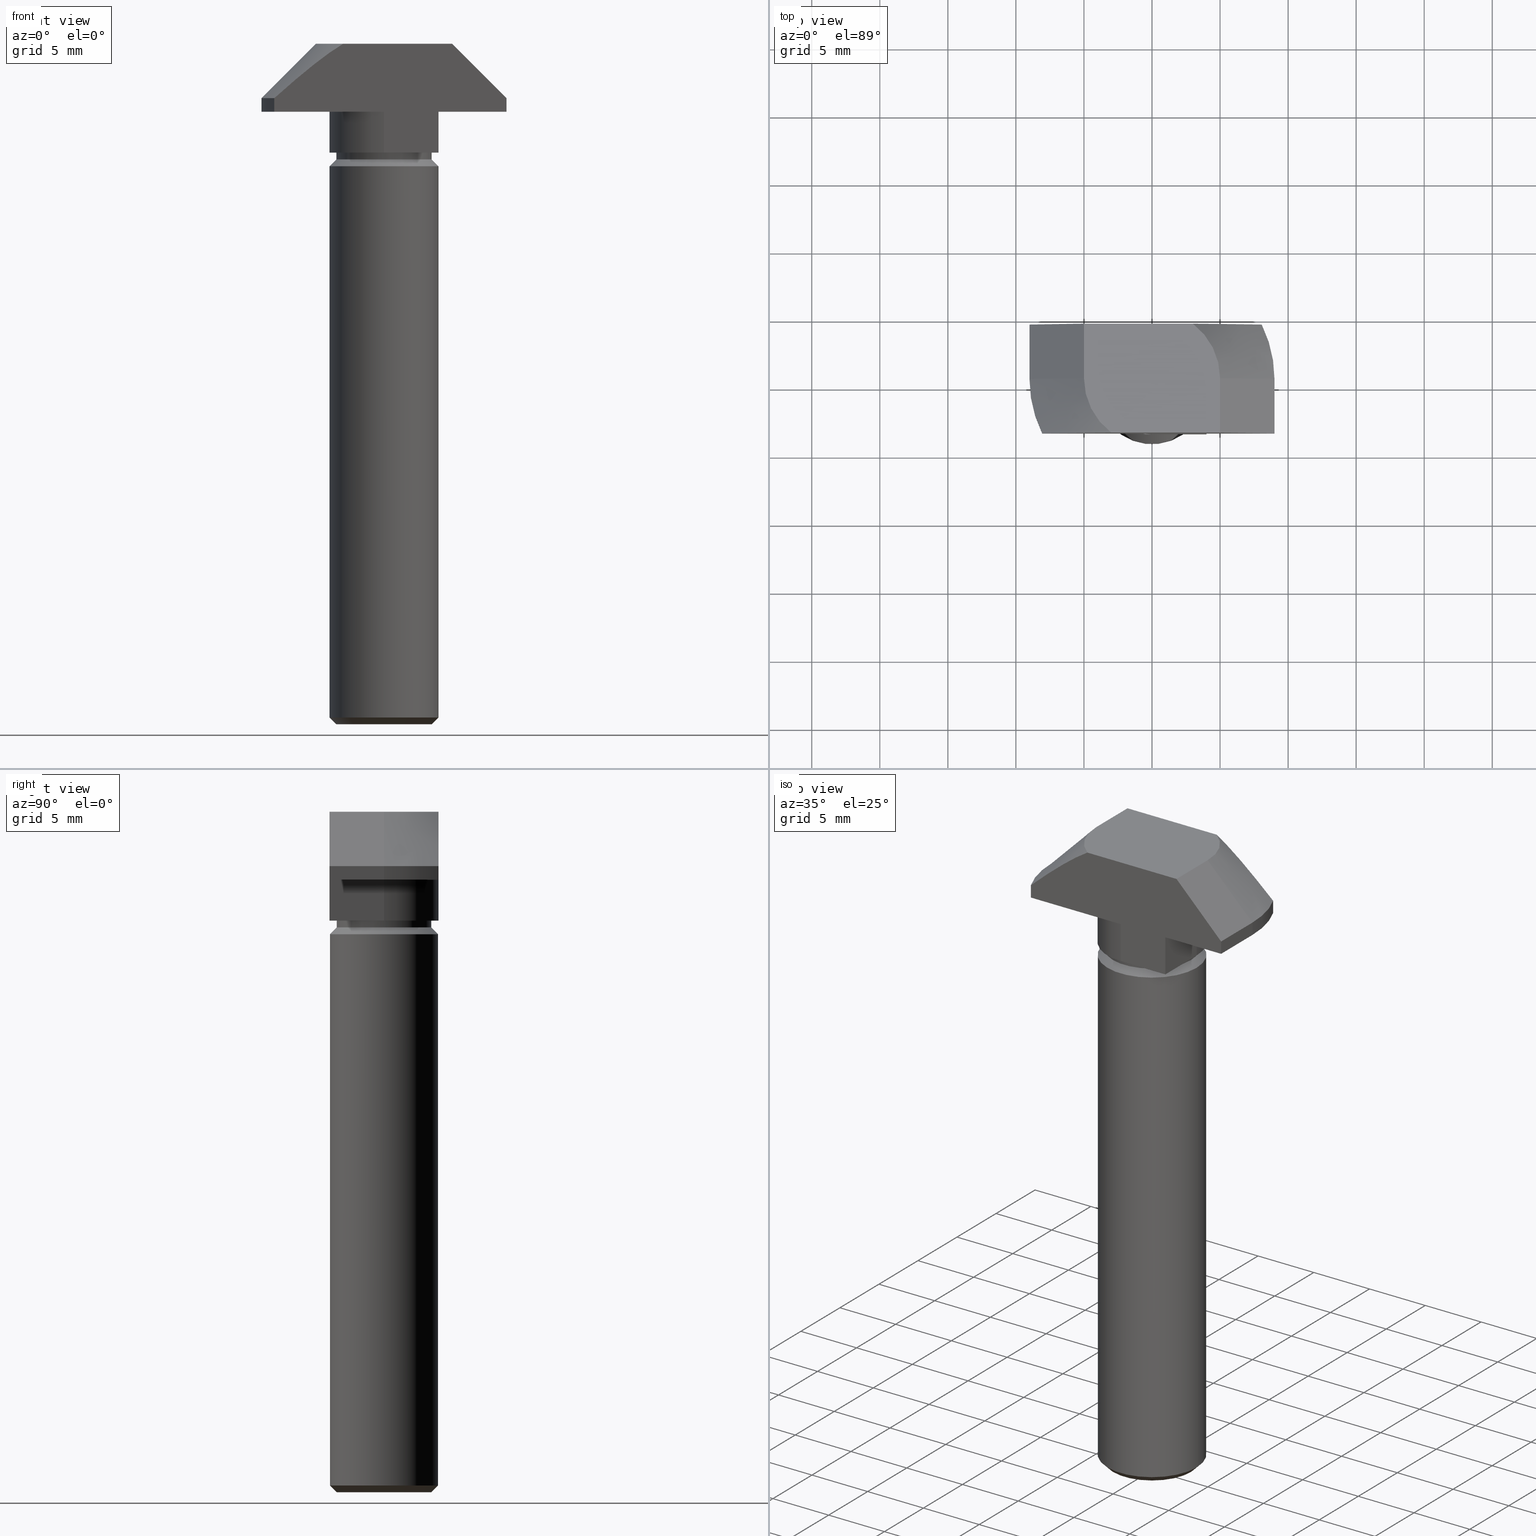
[diagram: canonical four-view strip — front | top / right | iso, engineering-drawing reading convention]
A machine part, canonical four-view strip (front | top / right | iso — engineering-drawing reading convention). The complete STEP part file that produces these views, byte-faithful:
ISO-10303-21;
HEADER;
/* Generated by software containing ST-Developer
 * from STEP Tools, Inc. (www.steptools.com) 
 */

FILE_DESCRIPTION(
/* description */ (''),
/* implementation_level */ '2;1');

FILE_NAME(
/* name */ 
'Q:\\Catalogo\\2_Accessori Dierre\\Per Download Web e catalogo cartace
o\\CATALOGO ELEMENTI ASSEMBLAGGIO\\PAGINA 14\\DVIXX0000023.stp',
/* time_stamp */ '2018-05-10T17:19:23+02:00',
/* author */ ('fzagni'),
/* organization */ (''),
/* preprocessor_version */ 'ST-DEVELOPER v16.1',
/* originating_system */ 'Autodesk Inventor 2016',
/* authorisation */ '');

FILE_SCHEMA (('AUTOMOTIVE_DESIGN { 1 0 10303 214 3 1 1 }'));
ENDSEC;

DATA;
#10=MECHANICAL_DESIGN_GEOMETRIC_PRESENTATION_REPRESENTATION('',(#13),#659);
#11=SHAPE_REPRESENTATION_RELATIONSHIP('SRR','None',#668,#12);
#12=ADVANCED_BREP_SHAPE_REPRESENTATION('',(#14),#658);
#13=STYLED_ITEM('',(#677),#14);
#14=MANIFOLD_SOLID_BREP('Solido1',#390);
#15=(
BOUNDED_CURVE()
B_SPLINE_CURVE(2,(#610,#611,#612),.UNSPECIFIED.,.F.,.F.)
B_SPLINE_CURVE_WITH_KNOTS((3,3),(0.,0.645810133031387),.UNSPECIFIED.)
CURVE()
GEOMETRIC_REPRESENTATION_ITEM()
RATIONAL_B_SPLINE_CURVE((1.,1.07257323111151,1.))
REPRESENTATION_ITEM('')
);
#16=(
BOUNDED_CURVE()
B_SPLINE_CURVE(2,(#629,#630,#631),.UNSPECIFIED.,.F.,.F.)
B_SPLINE_CURVE_WITH_KNOTS((3,3),(0.,0.645810133031388),.UNSPECIFIED.)
CURVE()
GEOMETRIC_REPRESENTATION_ITEM()
RATIONAL_B_SPLINE_CURVE((1.,1.07257323111155,1.))
REPRESENTATION_ITEM('')
);
#17=LINE('',#561,#51);
#18=LINE('',#563,#52);
#19=LINE('',#565,#53);
#20=LINE('',#566,#54);
#21=LINE('',#572,#55);
#22=LINE('',#576,#56);
#23=LINE('',#578,#57);
#24=LINE('',#580,#58);
#25=LINE('',#581,#59);
#26=LINE('',#587,#60);
#27=LINE('',#589,#61);
#28=LINE('',#590,#62);
#29=LINE('',#593,#63);
#30=LINE('',#597,#64);
#31=LINE('',#598,#65);
#32=LINE('',#601,#66);
#33=LINE('',#605,#67);
#34=LINE('',#606,#68);
#35=LINE('',#616,#69);
#36=LINE('',#619,#70);
#37=LINE('',#620,#71);
#38=LINE('',#623,#72);
#39=LINE('',#626,#73);
#40=LINE('',#634,#74);
#41=LINE('',#637,#75);
#42=LINE('',#638,#76);
#43=LINE('',#641,#77);
#44=LINE('',#642,#78);
#45=LINE('',#645,#79);
#46=LINE('',#646,#80);
#47=LINE('',#649,#81);
#48=LINE('',#650,#82);
#49=LINE('',#652,#83);
#50=LINE('',#654,#84);
#51=VECTOR('',#454,3.99999999999999);
#52=VECTOR('',#455,3.);
#53=VECTOR('',#456,3.99999999999999);
#54=VECTOR('',#457,3.);
#55=VECTOR('',#464,3.);
#56=VECTOR('',#467,3.99999999999999);
#57=VECTOR('',#468,3.);
#58=VECTOR('',#469,3.99999999999999);
#59=VECTOR('',#470,3.);
#60=VECTOR('',#477,3.);
#61=VECTOR('',#480,3.99999999999999);
#62=VECTOR('',#481,3.99999999999999);
#63=VECTOR('',#484,8.06225774829855);
#64=VECTOR('',#487,4.);
#65=VECTOR('',#488,5.00000000000001);
#66=VECTOR('',#491,8.06225774829855);
#67=VECTOR('',#494,4.);
#68=VECTOR('',#495,5.00000000000001);
#69=VECTOR('',#500,5.65685424949238);
#70=VECTOR('',#505,1.);
#71=VECTOR('',#506,1.);
#72=VECTOR('',#509,1.);
#73=VECTOR('',#512,1.);
#74=VECTOR('',#517,5.65685424949238);
#75=VECTOR('',#520,4.);
#76=VECTOR('',#521,1.);
#77=VECTOR('',#524,4.);
#78=VECTOR('',#525,5.65685424949238);
#79=VECTOR('',#528,4.);
#80=VECTOR('',#529,1.);
#81=VECTOR('',#532,4.);
#82=VECTOR('',#533,5.65685424949238);
#83=VECTOR('',#536,8.);
#84=VECTOR('',#539,8.00000000000001);
#85=PLANE('',#399);
#86=PLANE('',#402);
#87=PLANE('',#406);
#88=PLANE('',#410);
#89=PLANE('',#411);
#90=PLANE('',#413);
#91=PLANE('',#423);
#92=PLANE('',#424);
#93=PLANE('',#425);
#94=PLANE('',#426);
#95=PLANE('',#427);
#96=PLANE('',#428);
#97=PLANE('',#429);
#98=CYLINDRICAL_SURFACE('',#395,4.);
#99=CYLINDRICAL_SURFACE('',#400,3.5);
#100=CYLINDRICAL_SURFACE('',#403,4.00000000000001);
#101=CYLINDRICAL_SURFACE('',#407,3.99999999999999);
#102=CYLINDRICAL_SURFACE('',#418,9.);
#103=CYLINDRICAL_SURFACE('',#419,9.);
#104=FACE_BOUND('',#133,.T.);
#105=FACE_BOUND('',#135,.T.);
#106=FACE_BOUND('',#137,.T.);
#107=FACE_BOUND('',#140,.T.);
#108=FACE_BOUND('',#146,.T.);
#109=FACE_OUTER_BOUND('',#132,.T.);
#110=FACE_OUTER_BOUND('',#134,.T.);
#111=FACE_OUTER_BOUND('',#136,.T.);
#112=FACE_OUTER_BOUND('',#138,.T.);
#113=FACE_OUTER_BOUND('',#139,.T.);
#114=FACE_OUTER_BOUND('',#141,.T.);
#115=FACE_OUTER_BOUND('',#142,.T.);
#116=FACE_OUTER_BOUND('',#143,.T.);
#117=FACE_OUTER_BOUND('',#144,.T.);
#118=FACE_OUTER_BOUND('',#145,.T.);
#119=FACE_OUTER_BOUND('',#147,.T.);
#120=FACE_OUTER_BOUND('',#148,.T.);
#121=FACE_OUTER_BOUND('',#149,.T.);
#122=FACE_OUTER_BOUND('',#150,.T.);
#123=FACE_OUTER_BOUND('',#151,.T.);
#124=FACE_OUTER_BOUND('',#152,.T.);
#125=FACE_OUTER_BOUND('',#153,.T.);
#126=FACE_OUTER_BOUND('',#154,.T.);
#127=FACE_OUTER_BOUND('',#155,.T.);
#128=FACE_OUTER_BOUND('',#156,.T.);
#129=FACE_OUTER_BOUND('',#157,.T.);
#130=FACE_OUTER_BOUND('',#158,.T.);
#131=FACE_OUTER_BOUND('',#159,.T.);
#132=EDGE_LOOP('',(#261));
#133=EDGE_LOOP('',(#262));
#134=EDGE_LOOP('',(#263));
#135=EDGE_LOOP('',(#264));
#136=EDGE_LOOP('',(#265));
#137=EDGE_LOOP('',(#266));
#138=EDGE_LOOP('',(#267));
#139=EDGE_LOOP('',(#268));
#140=EDGE_LOOP('',(#269));
#141=EDGE_LOOP('',(#270,#271,#272,#273));
#142=EDGE_LOOP('',(#274,#275,#276,#277));
#143=EDGE_LOOP('',(#278,#279,#280,#281));
#144=EDGE_LOOP('',(#282,#283,#284,#285));
#145=EDGE_LOOP('',(#286,#287,#288,#289,#290,#291));
#146=EDGE_LOOP('',(#292));
#147=EDGE_LOOP('',(#293,#294,#295,#296,#297,#298));
#148=EDGE_LOOP('',(#299,#300,#301,#302,#303,#304));
#149=EDGE_LOOP('',(#305,#306,#307,#308));
#150=EDGE_LOOP('',(#309,#310,#311,#312));
#151=EDGE_LOOP('',(#313,#314,#315,#316));
#152=EDGE_LOOP('',(#317,#318,#319,#320));
#153=EDGE_LOOP('',(#321,#322,#323,#324));
#154=EDGE_LOOP('',(#325,#326,#327,#328));
#155=EDGE_LOOP('',(#329,#330,#331,#332));
#156=EDGE_LOOP('',(#333,#334,#335,#336));
#157=EDGE_LOOP('',(#337,#338,#339,#340,#341,#342,#343,#344,#345,#346));
#158=EDGE_LOOP('',(#347,#348,#349,#350,#351,#352));
#159=EDGE_LOOP('',(#353,#354,#355,#356,#357,#358,#359,#360,#361,#362));
#160=CIRCLE('',#393,4.);
#161=CIRCLE('',#394,3.5);
#162=CIRCLE('',#396,4.);
#163=CIRCLE('',#398,3.5);
#164=CIRCLE('',#401,3.5);
#165=CIRCLE('',#404,4.00000000000001);
#166=CIRCLE('',#405,4.00000000000001);
#167=CIRCLE('',#408,3.99999999999999);
#168=CIRCLE('',#409,3.99999999999999);
#169=CIRCLE('',#412,9.);
#170=CIRCLE('',#414,9.);
#171=CIRCLE('',#416,5.);
#172=CIRCLE('',#417,9.);
#173=CIRCLE('',#420,9.);
#174=CIRCLE('',#422,5.);
#175=VERTEX_POINT('',#544);
#176=VERTEX_POINT('',#546);
#177=VERTEX_POINT('',#549);
#178=VERTEX_POINT('',#552);
#179=VERTEX_POINT('',#556);
#180=VERTEX_POINT('',#559);
#181=VERTEX_POINT('',#560);
#182=VERTEX_POINT('',#562);
#183=VERTEX_POINT('',#564);
#184=VERTEX_POINT('',#568);
#185=VERTEX_POINT('',#570);
#186=VERTEX_POINT('',#574);
#187=VERTEX_POINT('',#575);
#188=VERTEX_POINT('',#577);
#189=VERTEX_POINT('',#579);
#190=VERTEX_POINT('',#583);
#191=VERTEX_POINT('',#585);
#192=VERTEX_POINT('',#592);
#193=VERTEX_POINT('',#594);
#194=VERTEX_POINT('',#596);
#195=VERTEX_POINT('',#600);
#196=VERTEX_POINT('',#602);
#197=VERTEX_POINT('',#604);
#198=VERTEX_POINT('',#608);
#199=VERTEX_POINT('',#609);
#200=VERTEX_POINT('',#613);
#201=VERTEX_POINT('',#615);
#202=VERTEX_POINT('',#622);
#203=VERTEX_POINT('',#624);
#204=VERTEX_POINT('',#628);
#205=VERTEX_POINT('',#632);
#206=VERTEX_POINT('',#636);
#207=VERTEX_POINT('',#640);
#208=VERTEX_POINT('',#644);
#209=VERTEX_POINT('',#648);
#210=EDGE_CURVE('',#175,#175,#160,.T.);
#211=EDGE_CURVE('',#176,#176,#161,.T.);
#212=EDGE_CURVE('',#177,#177,#162,.T.);
#213=EDGE_CURVE('',#178,#178,#163,.T.);
#214=EDGE_CURVE('',#179,#179,#164,.T.);
#215=EDGE_CURVE('',#180,#181,#17,.T.);
#216=EDGE_CURVE('',#180,#182,#18,.T.);
#217=EDGE_CURVE('',#183,#182,#19,.T.);
#218=EDGE_CURVE('',#181,#183,#20,.T.);
#219=EDGE_CURVE('',#181,#184,#165,.T.);
#220=EDGE_CURVE('',#185,#183,#166,.T.);
#221=EDGE_CURVE('',#184,#185,#21,.T.);
#222=EDGE_CURVE('',#186,#187,#22,.T.);
#223=EDGE_CURVE('',#186,#188,#23,.T.);
#224=EDGE_CURVE('',#189,#188,#24,.T.);
#225=EDGE_CURVE('',#187,#189,#25,.T.);
#226=EDGE_CURVE('',#187,#190,#167,.T.);
#227=EDGE_CURVE('',#191,#189,#168,.T.);
#228=EDGE_CURVE('',#190,#191,#26,.T.);
#229=EDGE_CURVE('',#182,#191,#27,.T.);
#230=EDGE_CURVE('',#188,#185,#28,.T.);
#231=EDGE_CURVE('',#192,#184,#29,.T.);
#232=EDGE_CURVE('',#192,#193,#169,.T.);
#233=EDGE_CURVE('',#193,#194,#30,.T.);
#234=EDGE_CURVE('',#180,#194,#31,.T.);
#235=EDGE_CURVE('',#195,#190,#32,.T.);
#236=EDGE_CURVE('',#195,#196,#170,.T.);
#237=EDGE_CURVE('',#196,#197,#33,.T.);
#238=EDGE_CURVE('',#186,#197,#34,.T.);
#239=EDGE_CURVE('',#198,#199,#15,.T.);
#240=EDGE_CURVE('',#200,#198,#171,.T.);
#241=EDGE_CURVE('',#200,#201,#35,.T.);
#242=EDGE_CURVE('',#201,#199,#172,.T.);
#243=EDGE_CURVE('',#199,#195,#36,.T.);
#244=EDGE_CURVE('',#201,#196,#37,.T.);
#245=EDGE_CURVE('',#202,#192,#38,.T.);
#246=EDGE_CURVE('',#203,#202,#173,.T.);
#247=EDGE_CURVE('',#203,#193,#39,.T.);
#248=EDGE_CURVE('',#204,#202,#16,.T.);
#249=EDGE_CURVE('',#205,#204,#174,.T.);
#250=EDGE_CURVE('',#205,#203,#40,.T.);
#251=EDGE_CURVE('',#201,#206,#41,.T.);
#252=EDGE_CURVE('',#197,#206,#42,.T.);
#253=EDGE_CURVE('',#200,#207,#43,.T.);
#254=EDGE_CURVE('',#206,#207,#44,.T.);
#255=EDGE_CURVE('',#208,#203,#45,.T.);
#256=EDGE_CURVE('',#194,#208,#46,.T.);
#257=EDGE_CURVE('',#209,#205,#47,.T.);
#258=EDGE_CURVE('',#208,#209,#48,.T.);
#259=EDGE_CURVE('',#207,#204,#49,.T.);
#260=EDGE_CURVE('',#209,#198,#50,.T.);
#261=ORIENTED_EDGE('',*,*,#210,.T.);
#262=ORIENTED_EDGE('',*,*,#211,.T.);
#263=ORIENTED_EDGE('',*,*,#212,.F.);
#264=ORIENTED_EDGE('',*,*,#210,.F.);
#265=ORIENTED_EDGE('',*,*,#212,.T.);
#266=ORIENTED_EDGE('',*,*,#213,.T.);
#267=ORIENTED_EDGE('',*,*,#213,.F.);
#268=ORIENTED_EDGE('',*,*,#211,.F.);
#269=ORIENTED_EDGE('',*,*,#214,.F.);
#270=ORIENTED_EDGE('',*,*,#215,.F.);
#271=ORIENTED_EDGE('',*,*,#216,.T.);
#272=ORIENTED_EDGE('',*,*,#217,.F.);
#273=ORIENTED_EDGE('',*,*,#218,.F.);
#274=ORIENTED_EDGE('',*,*,#219,.F.);
#275=ORIENTED_EDGE('',*,*,#218,.T.);
#276=ORIENTED_EDGE('',*,*,#220,.F.);
#277=ORIENTED_EDGE('',*,*,#221,.F.);
#278=ORIENTED_EDGE('',*,*,#222,.F.);
#279=ORIENTED_EDGE('',*,*,#223,.T.);
#280=ORIENTED_EDGE('',*,*,#224,.F.);
#281=ORIENTED_EDGE('',*,*,#225,.F.);
#282=ORIENTED_EDGE('',*,*,#226,.F.);
#283=ORIENTED_EDGE('',*,*,#225,.T.);
#284=ORIENTED_EDGE('',*,*,#227,.F.);
#285=ORIENTED_EDGE('',*,*,#228,.F.);
#286=ORIENTED_EDGE('',*,*,#229,.T.);
#287=ORIENTED_EDGE('',*,*,#227,.T.);
#288=ORIENTED_EDGE('',*,*,#224,.T.);
#289=ORIENTED_EDGE('',*,*,#230,.T.);
#290=ORIENTED_EDGE('',*,*,#220,.T.);
#291=ORIENTED_EDGE('',*,*,#217,.T.);
#292=ORIENTED_EDGE('',*,*,#214,.T.);
#293=ORIENTED_EDGE('',*,*,#219,.T.);
#294=ORIENTED_EDGE('',*,*,#231,.F.);
#295=ORIENTED_EDGE('',*,*,#232,.T.);
#296=ORIENTED_EDGE('',*,*,#233,.T.);
#297=ORIENTED_EDGE('',*,*,#234,.F.);
#298=ORIENTED_EDGE('',*,*,#215,.T.);
#299=ORIENTED_EDGE('',*,*,#222,.T.);
#300=ORIENTED_EDGE('',*,*,#226,.T.);
#301=ORIENTED_EDGE('',*,*,#235,.F.);
#302=ORIENTED_EDGE('',*,*,#236,.T.);
#303=ORIENTED_EDGE('',*,*,#237,.T.);
#304=ORIENTED_EDGE('',*,*,#238,.F.);
#305=ORIENTED_EDGE('',*,*,#239,.F.);
#306=ORIENTED_EDGE('',*,*,#240,.F.);
#307=ORIENTED_EDGE('',*,*,#241,.T.);
#308=ORIENTED_EDGE('',*,*,#242,.T.);
#309=ORIENTED_EDGE('',*,*,#243,.F.);
#310=ORIENTED_EDGE('',*,*,#242,.F.);
#311=ORIENTED_EDGE('',*,*,#244,.T.);
#312=ORIENTED_EDGE('',*,*,#236,.F.);
#313=ORIENTED_EDGE('',*,*,#245,.F.);
#314=ORIENTED_EDGE('',*,*,#246,.F.);
#315=ORIENTED_EDGE('',*,*,#247,.T.);
#316=ORIENTED_EDGE('',*,*,#232,.F.);
#317=ORIENTED_EDGE('',*,*,#248,.F.);
#318=ORIENTED_EDGE('',*,*,#249,.F.);
#319=ORIENTED_EDGE('',*,*,#250,.T.);
#320=ORIENTED_EDGE('',*,*,#246,.T.);
#321=ORIENTED_EDGE('',*,*,#244,.F.);
#322=ORIENTED_EDGE('',*,*,#251,.T.);
#323=ORIENTED_EDGE('',*,*,#252,.F.);
#324=ORIENTED_EDGE('',*,*,#237,.F.);
#325=ORIENTED_EDGE('',*,*,#241,.F.);
#326=ORIENTED_EDGE('',*,*,#253,.T.);
#327=ORIENTED_EDGE('',*,*,#254,.F.);
#328=ORIENTED_EDGE('',*,*,#251,.F.);
#329=ORIENTED_EDGE('',*,*,#247,.F.);
#330=ORIENTED_EDGE('',*,*,#255,.F.);
#331=ORIENTED_EDGE('',*,*,#256,.F.);
#332=ORIENTED_EDGE('',*,*,#233,.F.);
#333=ORIENTED_EDGE('',*,*,#250,.F.);
#334=ORIENTED_EDGE('',*,*,#257,.F.);
#335=ORIENTED_EDGE('',*,*,#258,.F.);
#336=ORIENTED_EDGE('',*,*,#255,.T.);
#337=ORIENTED_EDGE('',*,*,#245,.T.);
#338=ORIENTED_EDGE('',*,*,#231,.T.);
#339=ORIENTED_EDGE('',*,*,#221,.T.);
#340=ORIENTED_EDGE('',*,*,#230,.F.);
#341=ORIENTED_EDGE('',*,*,#223,.F.);
#342=ORIENTED_EDGE('',*,*,#238,.T.);
#343=ORIENTED_EDGE('',*,*,#252,.T.);
#344=ORIENTED_EDGE('',*,*,#254,.T.);
#345=ORIENTED_EDGE('',*,*,#259,.T.);
#346=ORIENTED_EDGE('',*,*,#248,.T.);
#347=ORIENTED_EDGE('',*,*,#240,.T.);
#348=ORIENTED_EDGE('',*,*,#260,.F.);
#349=ORIENTED_EDGE('',*,*,#257,.T.);
#350=ORIENTED_EDGE('',*,*,#249,.T.);
#351=ORIENTED_EDGE('',*,*,#259,.F.);
#352=ORIENTED_EDGE('',*,*,#253,.F.);
#353=ORIENTED_EDGE('',*,*,#243,.T.);
#354=ORIENTED_EDGE('',*,*,#235,.T.);
#355=ORIENTED_EDGE('',*,*,#228,.T.);
#356=ORIENTED_EDGE('',*,*,#229,.F.);
#357=ORIENTED_EDGE('',*,*,#216,.F.);
#358=ORIENTED_EDGE('',*,*,#234,.T.);
#359=ORIENTED_EDGE('',*,*,#256,.T.);
#360=ORIENTED_EDGE('',*,*,#258,.T.);
#361=ORIENTED_EDGE('',*,*,#260,.T.);
#362=ORIENTED_EDGE('',*,*,#239,.T.);
#363=CONICAL_SURFACE('',#392,3.75,45.);
#364=CONICAL_SURFACE('',#397,3.75,44.9999999999996);
#365=CONICAL_SURFACE('',#415,7.,45.);
#366=CONICAL_SURFACE('',#421,7.,45.);
#367=ADVANCED_FACE('',(#109,#104),#363,.T.);
#368=ADVANCED_FACE('',(#110,#105),#98,.T.);
#369=ADVANCED_FACE('',(#111,#106),#364,.T.);
#370=ADVANCED_FACE('',(#112),#85,.F.);
#371=ADVANCED_FACE('',(#113,#107),#99,.T.);
#372=ADVANCED_FACE('',(#114),#86,.T.);
#373=ADVANCED_FACE('',(#115),#100,.T.);
#374=ADVANCED_FACE('',(#116),#87,.T.);
#375=ADVANCED_FACE('',(#117),#101,.T.);
#376=ADVANCED_FACE('',(#118,#108),#88,.F.);
#377=ADVANCED_FACE('',(#119),#89,.T.);
#378=ADVANCED_FACE('',(#120),#90,.T.);
#379=ADVANCED_FACE('',(#121),#365,.T.);
#380=ADVANCED_FACE('',(#122),#102,.T.);
#381=ADVANCED_FACE('',(#123),#103,.T.);
#382=ADVANCED_FACE('',(#124),#366,.T.);
#383=ADVANCED_FACE('',(#125),#91,.T.);
#384=ADVANCED_FACE('',(#126),#92,.T.);
#385=ADVANCED_FACE('',(#127),#93,.T.);
#386=ADVANCED_FACE('',(#128),#94,.T.);
#387=ADVANCED_FACE('',(#129),#95,.T.);
#388=ADVANCED_FACE('',(#130),#96,.T.);
#389=ADVANCED_FACE('',(#131),#97,.T.);
#390=CLOSED_SHELL('',(#367,#368,#369,#370,#371,#372,#373,#374,#375,#376,
#377,#378,#379,#380,#381,#382,#383,#384,#385,#386,#387,#388,#389));
#391=AXIS2_PLACEMENT_3D('placement',#542,#430,#431);
#392=AXIS2_PLACEMENT_3D('',#543,#432,#433);
#393=AXIS2_PLACEMENT_3D('',#545,#434,#435);
#394=AXIS2_PLACEMENT_3D('',#547,#436,#437);
#395=AXIS2_PLACEMENT_3D('',#548,#438,#439);
#396=AXIS2_PLACEMENT_3D('',#550,#440,#441);
#397=AXIS2_PLACEMENT_3D('',#551,#442,#443);
#398=AXIS2_PLACEMENT_3D('',#553,#444,#445);
#399=AXIS2_PLACEMENT_3D('',#554,#446,#447);
#400=AXIS2_PLACEMENT_3D('',#555,#448,#449);
#401=AXIS2_PLACEMENT_3D('',#557,#450,#451);
#402=AXIS2_PLACEMENT_3D('',#558,#452,#453);
#403=AXIS2_PLACEMENT_3D('',#567,#458,#459);
#404=AXIS2_PLACEMENT_3D('',#569,#460,#461);
#405=AXIS2_PLACEMENT_3D('',#571,#462,#463);
#406=AXIS2_PLACEMENT_3D('',#573,#465,#466);
#407=AXIS2_PLACEMENT_3D('',#582,#471,#472);
#408=AXIS2_PLACEMENT_3D('',#584,#473,#474);
#409=AXIS2_PLACEMENT_3D('',#586,#475,#476);
#410=AXIS2_PLACEMENT_3D('',#588,#478,#479);
#411=AXIS2_PLACEMENT_3D('',#591,#482,#483);
#412=AXIS2_PLACEMENT_3D('',#595,#485,#486);
#413=AXIS2_PLACEMENT_3D('',#599,#489,#490);
#414=AXIS2_PLACEMENT_3D('',#603,#492,#493);
#415=AXIS2_PLACEMENT_3D('',#607,#496,#497);
#416=AXIS2_PLACEMENT_3D('',#614,#498,#499);
#417=AXIS2_PLACEMENT_3D('',#617,#501,#502);
#418=AXIS2_PLACEMENT_3D('',#618,#503,#504);
#419=AXIS2_PLACEMENT_3D('',#621,#507,#508);
#420=AXIS2_PLACEMENT_3D('',#625,#510,#511);
#421=AXIS2_PLACEMENT_3D('',#627,#513,#514);
#422=AXIS2_PLACEMENT_3D('',#633,#515,#516);
#423=AXIS2_PLACEMENT_3D('',#635,#518,#519);
#424=AXIS2_PLACEMENT_3D('',#639,#522,#523);
#425=AXIS2_PLACEMENT_3D('',#643,#526,#527);
#426=AXIS2_PLACEMENT_3D('',#647,#530,#531);
#427=AXIS2_PLACEMENT_3D('',#651,#534,#535);
#428=AXIS2_PLACEMENT_3D('',#653,#537,#538);
#429=AXIS2_PLACEMENT_3D('',#655,#540,#541);
#430=DIRECTION('axis',(0.,0.,1.));
#431=DIRECTION('refdir',(1.,0.,0.));
#432=DIRECTION('center_axis',(0.,0.,-1.));
#433=DIRECTION('ref_axis',(1.,0.,0.));
#434=DIRECTION('center_axis',(0.,0.,1.));
#435=DIRECTION('ref_axis',(1.,0.,0.));
#436=DIRECTION('center_axis',(0.,0.,-1.));
#437=DIRECTION('ref_axis',(1.,0.,0.));
#438=DIRECTION('center_axis',(0.,0.,-1.));
#439=DIRECTION('ref_axis',(1.,0.,0.));
#440=DIRECTION('center_axis',(0.,0.,-1.));
#441=DIRECTION('ref_axis',(1.,0.,0.));
#442=DIRECTION('center_axis',(0.,0.,1.));
#443=DIRECTION('ref_axis',(1.,0.,0.));
#444=DIRECTION('center_axis',(0.,0.,1.));
#445=DIRECTION('ref_axis',(1.,0.,0.));
#446=DIRECTION('center_axis',(0.,0.,1.));
#447=DIRECTION('ref_axis',(1.,0.,0.));
#448=DIRECTION('center_axis',(0.,0.,-1.));
#449=DIRECTION('ref_axis',(1.,0.,0.));
#450=DIRECTION('center_axis',(0.,0.,1.));
#451=DIRECTION('ref_axis',(1.,0.,0.));
#452=DIRECTION('center_axis',(-1.,0.,0.));
#453=DIRECTION('ref_axis',(0.,1.,0.));
#454=DIRECTION('',(0.,-1.,0.));
#455=DIRECTION('',(0.,0.,-1.));
#456=DIRECTION('',(0.,1.,0.));
#457=DIRECTION('',(0.,0.,-1.));
#458=DIRECTION('center_axis',(0.,0.,-1.));
#459=DIRECTION('ref_axis',(2.7755575615629E-16,1.,0.));
#460=DIRECTION('center_axis',(0.,0.,1.));
#461=DIRECTION('ref_axis',(2.7755575615629E-16,1.,0.));
#462=DIRECTION('center_axis',(0.,0.,-1.));
#463=DIRECTION('ref_axis',(2.7755575615629E-16,1.,0.));
#464=DIRECTION('',(0.,0.,-1.));
#465=DIRECTION('center_axis',(1.,0.,0.));
#466=DIRECTION('ref_axis',(0.,-1.,0.));
#467=DIRECTION('',(0.,1.,0.));
#468=DIRECTION('',(0.,0.,-1.));
#469=DIRECTION('',(0.,-1.,0.));
#470=DIRECTION('',(0.,0.,-1.));
#471=DIRECTION('center_axis',(0.,0.,-1.));
#472=DIRECTION('ref_axis',(0.,-1.,0.));
#473=DIRECTION('center_axis',(0.,0.,1.));
#474=DIRECTION('ref_axis',(0.,-1.,0.));
#475=DIRECTION('center_axis',(0.,0.,-1.));
#476=DIRECTION('ref_axis',(0.,-1.,0.));
#477=DIRECTION('',(0.,0.,-1.));
#478=DIRECTION('center_axis',(0.,0.,1.));
#479=DIRECTION('ref_axis',(1.,0.,0.));
#480=DIRECTION('',(1.,0.,0.));
#481=DIRECTION('',(-1.,3.06161699786838E-16,0.));
#482=DIRECTION('center_axis',(0.,0.,-1.));
#483=DIRECTION('ref_axis',(-1.,0.,0.));
#484=DIRECTION('',(1.,0.,0.));
#485=DIRECTION('center_axis',(0.,0.,-1.));
#486=DIRECTION('ref_axis',(-1.,0.,0.));
#487=DIRECTION('',(0.,1.,0.));
#488=DIRECTION('',(-1.,0.,0.));
#489=DIRECTION('center_axis',(0.,0.,-1.));
#490=DIRECTION('ref_axis',(-1.,0.,0.));
#491=DIRECTION('',(-1.,0.,0.));
#492=DIRECTION('center_axis',(0.,0.,-1.));
#493=DIRECTION('ref_axis',(1.,0.,0.));
#494=DIRECTION('',(0.,-1.,0.));
#495=DIRECTION('',(1.,0.,0.));
#496=DIRECTION('center_axis',(0.,0.,-1.));
#497=DIRECTION('ref_axis',(1.,0.,0.));
#498=DIRECTION('center_axis',(2.04289535270664E-17,0.,1.));
#499=DIRECTION('ref_axis',(1.,0.,0.));
#500=DIRECTION('',(0.707106781186547,0.,-0.707106781186548));
#501=DIRECTION('center_axis',(2.9781283147877E-16,2.9781283147877E-16,1.));
#502=DIRECTION('ref_axis',(1.,1.2335811384724E-16,-3.08395284618099E-16));
#503=DIRECTION('center_axis',(0.,0.,1.));
#504=DIRECTION('ref_axis',(1.,0.,0.));
#505=DIRECTION('',(0.,0.,-1.));
#506=DIRECTION('',(0.,0.,-1.));
#507=DIRECTION('center_axis',(0.,0.,1.));
#508=DIRECTION('ref_axis',(-1.,0.,0.));
#509=DIRECTION('',(0.,0.,-1.));
#510=DIRECTION('center_axis',(0.,0.,1.));
#511=DIRECTION('ref_axis',(-1.,-1.2335811384724E-16,0.));
#512=DIRECTION('',(0.,0.,-1.));
#513=DIRECTION('center_axis',(0.,0.,-1.));
#514=DIRECTION('ref_axis',(-1.,0.,0.));
#515=DIRECTION('center_axis',(2.04289535270664E-17,0.,1.));
#516=DIRECTION('ref_axis',(-1.,0.,0.));
#517=DIRECTION('',(-0.707106781186547,0.,-0.707106781186547));
#518=DIRECTION('center_axis',(1.,0.,0.));
#519=DIRECTION('ref_axis',(0.,0.,-1.));
#520=DIRECTION('',(0.,-1.,0.));
#521=DIRECTION('',(0.,0.,1.));
#522=DIRECTION('center_axis',(0.707106781186548,0.,0.707106781186547));
#523=DIRECTION('ref_axis',(0.707106781186547,0.,-0.707106781186548));
#524=DIRECTION('',(0.,-1.,0.));
#525=DIRECTION('',(-0.707106781186547,0.,0.707106781186548));
#526=DIRECTION('center_axis',(-1.,0.,0.));
#527=DIRECTION('ref_axis',(0.,0.,1.));
#528=DIRECTION('',(0.,-1.,0.));
#529=DIRECTION('',(0.,0.,1.));
#530=DIRECTION('center_axis',(-0.707106781186548,0.,0.707106781186548));
#531=DIRECTION('ref_axis',(0.707106781186548,0.,0.707106781186548));
#532=DIRECTION('',(0.,-1.,0.));
#533=DIRECTION('',(0.707106781186548,0.,0.707106781186548));
#534=DIRECTION('center_axis',(0.,-1.,0.));
#535=DIRECTION('ref_axis',(0.,0.,-1.));
#536=DIRECTION('',(-1.,0.,2.04289535270664E-17));
#537=DIRECTION('center_axis',(2.04289535270664E-17,0.,1.));
#538=DIRECTION('ref_axis',(1.,0.,-2.04289535270664E-17));
#539=DIRECTION('',(1.,0.,-2.04289535270664E-17));
#540=DIRECTION('center_axis',(0.,1.,0.));
#541=DIRECTION('ref_axis',(0.,0.,1.));
#542=CARTESIAN_POINT('',(0.,0.,0.));
#543=CARTESIAN_POINT('Origin',(0.,0.,-8.75));
#544=CARTESIAN_POINT('',(-4.,-4.89858719658941E-16,-9.));
#545=CARTESIAN_POINT('Origin',(0.,0.,-9.));
#546=CARTESIAN_POINT('',(-3.5,4.28626379701574E-16,-8.5));
#547=CARTESIAN_POINT('Origin',(0.,0.,-8.5));
#548=CARTESIAN_POINT('Origin',(0.,0.,-8.5));
#549=CARTESIAN_POINT('',(-4.,4.89858719658941E-16,-49.5));
#550=CARTESIAN_POINT('Origin',(0.,0.,-49.5));
#551=CARTESIAN_POINT('Origin',(0.,0.,-49.75));
#552=CARTESIAN_POINT('',(-3.5,-4.28626379701574E-16,-50.));
#553=CARTESIAN_POINT('Origin',(0.,0.,-50.));
#554=CARTESIAN_POINT('Origin',(2.72118023435153E-16,0.,-50.));
#555=CARTESIAN_POINT('Origin',(0.,0.,-8.));
#556=CARTESIAN_POINT('',(-3.5,4.28626379701574E-16,-8.));
#557=CARTESIAN_POINT('Origin',(0.,0.,-8.));
#558=CARTESIAN_POINT('Origin',(-3.99999999999999,-1.4432899320127E-14,-5.));
#559=CARTESIAN_POINT('',(-3.99999999999999,3.99999999999998,-5.));
#560=CARTESIAN_POINT('',(-3.99999999999999,-1.4432899320127E-14,-5.));
#561=CARTESIAN_POINT('',(-3.99999999999999,-7.21644966006352E-15,-5.));
#562=CARTESIAN_POINT('',(-3.99999999999999,3.99999999999998,-8.));
#563=CARTESIAN_POINT('',(-3.99999999999999,3.99999999999998,-5.));
#564=CARTESIAN_POINT('',(-3.99999999999999,-1.4432899320127E-14,-8.));
#565=CARTESIAN_POINT('',(-3.99999999999999,3.99999999999998,-8.));
#566=CARTESIAN_POINT('',(-3.99999999999999,-1.4432899320127E-14,-5.));
#567=CARTESIAN_POINT('Origin',(1.11022302462516E-15,-1.33226762955019E-14,
-5.));
#568=CARTESIAN_POINT('',(0.,-4.00000000000001,-5.));
#569=CARTESIAN_POINT('Origin',(1.11022302462516E-15,-1.33226762955019E-14,
-5.));
#570=CARTESIAN_POINT('',(0.,-4.00000000000001,-8.));
#571=CARTESIAN_POINT('Origin',(1.11022302462516E-15,-1.33226762955019E-14,
-8.));
#572=CARTESIAN_POINT('',(0.,-4.00000000000001,-5.));
#573=CARTESIAN_POINT('Origin',(3.99999999999999,-1.49880108324396E-14,-5.));
#574=CARTESIAN_POINT('',(3.99999999999999,-4.00000000000001,-5.));
#575=CARTESIAN_POINT('',(3.99999999999999,-1.49880108324396E-14,-5.));
#576=CARTESIAN_POINT('',(3.99999999999999,-7.49400541621981E-15,-5.));
#577=CARTESIAN_POINT('',(3.99999999999999,-4.00000000000001,-8.));
#578=CARTESIAN_POINT('',(3.99999999999999,-4.00000000000001,-5.));
#579=CARTESIAN_POINT('',(3.99999999999999,-1.49880108324396E-14,-8.));
#580=CARTESIAN_POINT('',(3.99999999999999,-4.00000000000001,-8.));
#581=CARTESIAN_POINT('',(3.99999999999999,-1.49880108324396E-14,-5.));
#582=CARTESIAN_POINT('Origin',(0.,0.,-5.));
#583=CARTESIAN_POINT('',(0.,3.99999999999998,-5.));
#584=CARTESIAN_POINT('Origin',(0.,0.,-5.));
#585=CARTESIAN_POINT('',(0.,3.99999999999998,-8.));
#586=CARTESIAN_POINT('Origin',(0.,0.,-8.));
#587=CARTESIAN_POINT('',(0.,3.99999999999998,-5.));
#588=CARTESIAN_POINT('Origin',(-2.94752049665217E-15,-1.61294871622355E-14,
-8.));
#589=CARTESIAN_POINT('',(0.,3.99999999999998,-8.));
#590=CARTESIAN_POINT('',(0.,-4.00000000000001,-8.));
#591=CARTESIAN_POINT('Origin',(9.,0.,-5.));
#592=CARTESIAN_POINT('',(-8.06225774829855,-4.,-5.));
#593=CARTESIAN_POINT('',(-9.,-4.,-5.));
#594=CARTESIAN_POINT('',(-9.,0.,-5.));
#595=CARTESIAN_POINT('Origin',(0.,0.,-5.));
#596=CARTESIAN_POINT('',(-9.,4.,-5.));
#597=CARTESIAN_POINT('',(-9.,0.,-5.));
#598=CARTESIAN_POINT('',(-9.,4.,-5.));
#599=CARTESIAN_POINT('Origin',(9.,0.,-5.));
#600=CARTESIAN_POINT('',(8.06225774829855,4.,-5.));
#601=CARTESIAN_POINT('',(-9.,4.,-5.));
#602=CARTESIAN_POINT('',(9.,0.,-5.));
#603=CARTESIAN_POINT('Origin',(0.,0.,-5.));
#604=CARTESIAN_POINT('',(9.,-4.,-5.));
#605=CARTESIAN_POINT('',(9.,0.,-5.));
#606=CARTESIAN_POINT('',(-9.,-4.,-5.));
#607=CARTESIAN_POINT('Origin',(0.,0.,-2.));
#608=CARTESIAN_POINT('',(3.,4.,0.));
#609=CARTESIAN_POINT('',(8.06225774829855,4.,-4.));
#610=CARTESIAN_POINT('Ctrl Pts',(3.,4.,-2.77555756156289E-16));
#611=CARTESIAN_POINT('Ctrl Pts',(4.80794919582092,4.,-1.08476951749255));
#612=CARTESIAN_POINT('Ctrl Pts',(8.06225774829855,4.,-4.));
#613=CARTESIAN_POINT('',(5.,0.,0.));
#614=CARTESIAN_POINT('Origin',(0.,0.,2.77555756156289E-16));
#615=CARTESIAN_POINT('',(9.,0.,-4.));
#616=CARTESIAN_POINT('',(7.,0.,-2.));
#617=CARTESIAN_POINT('Origin',(-1.11022302462516E-15,-1.11022302462516E-15,
-4.));
#618=CARTESIAN_POINT('Origin',(0.,0.,-4.5));
#619=CARTESIAN_POINT('',(8.06225774829855,4.,-4.5));
#620=CARTESIAN_POINT('',(9.,0.,-4.5));
#621=CARTESIAN_POINT('Origin',(0.,0.,-4.5));
#622=CARTESIAN_POINT('',(-8.06225774829855,-4.,-4.));
#623=CARTESIAN_POINT('',(-8.06225774829855,-4.,-4.5));
#624=CARTESIAN_POINT('',(-9.,0.,-4.));
#625=CARTESIAN_POINT('Origin',(1.11022302462516E-15,1.11022302462516E-15,
-4.));
#626=CARTESIAN_POINT('',(-9.,0.,-4.5));
#627=CARTESIAN_POINT('Origin',(0.,0.,-2.));
#628=CARTESIAN_POINT('',(-3.,-4.,0.));
#629=CARTESIAN_POINT('Ctrl Pts',(-3.,-4.,2.77555756156289E-16));
#630=CARTESIAN_POINT('Ctrl Pts',(-4.80794919582092,-4.,-1.08476951749255));
#631=CARTESIAN_POINT('Ctrl Pts',(-8.06225774829855,-4.,-4.));
#632=CARTESIAN_POINT('',(-5.,0.,0.));
#633=CARTESIAN_POINT('Origin',(0.,0.,2.77555756156289E-16));
#634=CARTESIAN_POINT('',(-7.,0.,-2.));
#635=CARTESIAN_POINT('Origin',(9.,0.,-4.));
#636=CARTESIAN_POINT('',(9.,-4.,-4.));
#637=CARTESIAN_POINT('',(9.,0.,-4.));
#638=CARTESIAN_POINT('',(9.,-4.,-5.));
#639=CARTESIAN_POINT('Origin',(5.,0.,0.));
#640=CARTESIAN_POINT('',(5.,-4.,0.));
#641=CARTESIAN_POINT('',(5.,0.,1.96261524244674E-16));
#642=CARTESIAN_POINT('',(9.,-4.,-4.));
#643=CARTESIAN_POINT('Origin',(-9.,0.,-5.));
#644=CARTESIAN_POINT('',(-9.,4.,-4.));
#645=CARTESIAN_POINT('',(-9.,0.,-4.));
#646=CARTESIAN_POINT('',(-9.,4.,-4.));
#647=CARTESIAN_POINT('Origin',(-9.,0.,-4.));
#648=CARTESIAN_POINT('',(-5.,4.,0.));
#649=CARTESIAN_POINT('',(-5.,0.,4.00551059515339E-16));
#650=CARTESIAN_POINT('',(-5.,4.,4.00551059515339E-16));
#651=CARTESIAN_POINT('Origin',(0.,-4.,-2.94399659137253));
#652=CARTESIAN_POINT('',(5.,-4.,1.96261524244674E-16));
#653=CARTESIAN_POINT('Origin',(-5.,0.,4.00551059515339E-16));
#654=CARTESIAN_POINT('',(5.,4.,1.96261524244674E-16));
#655=CARTESIAN_POINT('Origin',(0.,4.,-2.94399659137253));
#656=UNCERTAINTY_MEASURE_WITH_UNIT(LENGTH_MEASURE(0.01),#660,
'DISTANCE_ACCURACY_VALUE',
'Maximum model space distance between geometric entities at asserted c
onnectivities');
#657=UNCERTAINTY_MEASURE_WITH_UNIT(LENGTH_MEASURE(1.E-6),#660,
'DISTANCE_ACCURACY_VALUE',
'Maximum model space distance between geometric entities at asserted c
onnectivities');
#658=(
GEOMETRIC_REPRESENTATION_CONTEXT(3)
GLOBAL_UNCERTAINTY_ASSIGNED_CONTEXT((#656))
GLOBAL_UNIT_ASSIGNED_CONTEXT((#660,#663,#661))
REPRESENTATION_CONTEXT('','3D')
);
#659=(
GEOMETRIC_REPRESENTATION_CONTEXT(3)
GLOBAL_UNCERTAINTY_ASSIGNED_CONTEXT((#657))
GLOBAL_UNIT_ASSIGNED_CONTEXT((#660,#663,#661))
REPRESENTATION_CONTEXT('','3D')
);
#660=(
LENGTH_UNIT()
NAMED_UNIT(*)
SI_UNIT(.MILLI.,.METRE.)
);
#661=(
NAMED_UNIT(*)
SI_UNIT($,.STERADIAN.)
SOLID_ANGLE_UNIT()
);
#662=DIMENSIONAL_EXPONENTS(0.,0.,0.,0.,0.,0.,0.);
#663=(
CONVERSION_BASED_UNIT('degree',#665)
NAMED_UNIT(#662)
PLANE_ANGLE_UNIT()
);
#664=(
NAMED_UNIT(*)
PLANE_ANGLE_UNIT()
SI_UNIT($,.RADIAN.)
);
#665=PLANE_ANGLE_MEASURE_WITH_UNIT(PLANE_ANGLE_MEASURE(0.01745329252),#664);
#666=SHAPE_DEFINITION_REPRESENTATION(#667,#668);
#667=PRODUCT_DEFINITION_SHAPE('',$,#670);
#668=SHAPE_REPRESENTATION('',(#391),#658);
#669=PRODUCT_DEFINITION_CONTEXT('part definition',#674,'design');
#670=PRODUCT_DEFINITION('VITE M8 L=45 Serie 40 INOX',
'VITE M8 L=45 Serie 40 INOX',#671,#669);
#671=PRODUCT_DEFINITION_FORMATION('',$,#676);
#672=PRODUCT_RELATED_PRODUCT_CATEGORY('VITE M8 L=45 Serie 40 INOX',
'VITE M8 L=45 Serie 40 INOX',(#676));
#673=APPLICATION_PROTOCOL_DEFINITION('international standard',
'automotive_design',2009,#674);
#674=APPLICATION_CONTEXT(
'Core Data for Automotive Mechanical Design Process');
#675=PRODUCT_CONTEXT('part definition',#674,'mechanical');
#676=PRODUCT('VITE M8 L=45 Serie 40 INOX','VITE M8 L=45 Serie 40 INOX',
$,(#675));
#677=PRESENTATION_STYLE_ASSIGNMENT((#678));
#678=SURFACE_STYLE_USAGE(.BOTH.,#679);
#679=SURFACE_SIDE_STYLE('',(#680));
#680=SURFACE_STYLE_FILL_AREA(#681);
#681=FILL_AREA_STYLE('',(#682));
#682=FILL_AREA_STYLE_COLOUR('',#683);
#683=COLOUR_RGB('',0.745098039215686,0.737254901960784,0.729411764705882);
ENDSEC;
END-ISO-10303-21;
